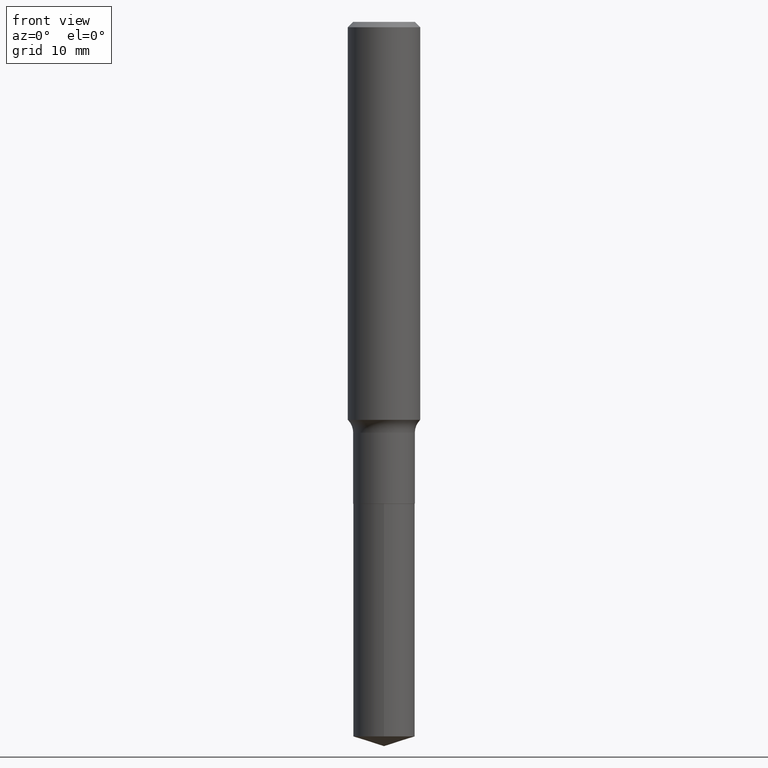
[diagram: clean part render]
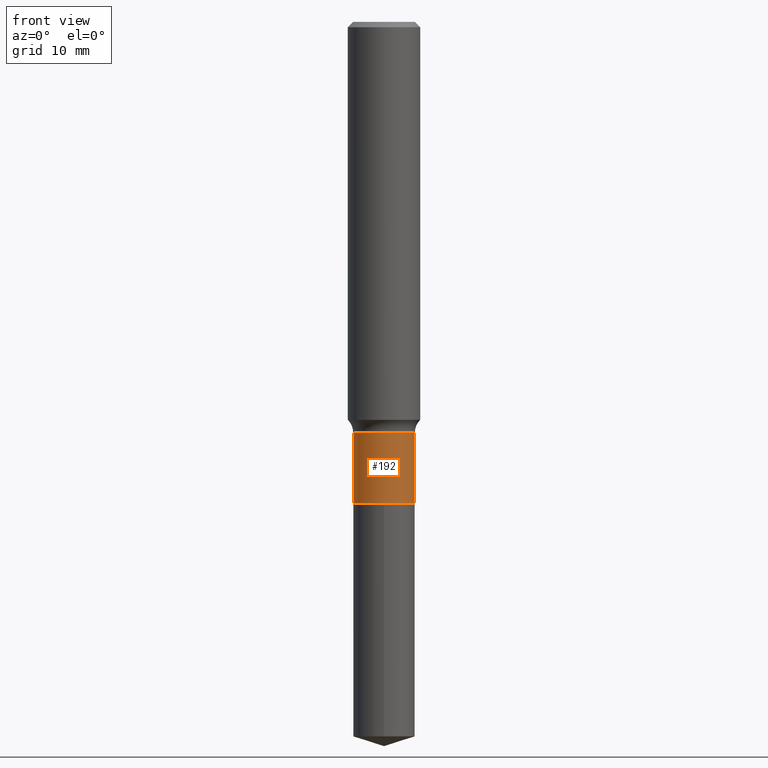
[diagram: same view with one face highlighted and labeled with its STEP entity id]
A machine part, front view. The second image highlights one B-rep face of the part: STEP entity #192.
In plain terms, the highlighted cylindrical surface (edge-blend (fillet) strip) has radius 3.3782 mm, axis along (-0, 0, 1).
Its self-contained STEP definition (entity closure, byte-faithful):
#15 = EDGE_CURVE ( 'NONE', #438, #214, #229, .T. ) ;
#20 = VECTOR ( 'NONE', #261, 39.37007874015748143 ) ;
#31 = CARTESIAN_POINT ( 'NONE',  ( -0.1330000000000000349, -5.777127183113776557E-15, -2.078000000000000291 ) ) ;
#48 = CARTESIAN_POINT ( 'NONE',  ( -0.1329999999999999793, -5.777127183113776557E-15, -1.772600000000000176 ) ) ;
#75 = CARTESIAN_POINT ( 'NONE',  ( 4.334838005843773806E-29, -6.188999821233359788E-15, -1.772600000000000176 ) ) ;
#89 = CARTESIAN_POINT ( 'NONE',  ( 0.000000000000000000, 0.000000000000000000, 0.000000000000000000 ) ) ;
#99 = EDGE_CURVE ( 'NONE', #438, #263, #113, .T. ) ;
#108 = DIRECTION ( 'NONE',  ( -2.445468806185136597E-29, 3.491481338843145583E-15, 1.000000000000000000 ) ) ;
#113 = LINE ( 'NONE', #380, #20 ) ;
#123 = DIRECTION ( 'NONE',  ( 1.000000000000000000, -6.982962677686267499E-15, 4.876176775795936353E-29 ) ) ;
#143 = DIRECTION ( 'NONE',  ( 1.000000000000000000, -6.982962677686269077E-15, 0.000000000000000000 ) ) ;
#155 = DIRECTION ( 'NONE',  ( 1.000000000000000000, -6.982962677686267499E-15, 0.000000000000000000 ) ) ;
#157 = LINE ( 'NONE', #423, #329 ) ;
#159 = CARTESIAN_POINT ( 'NONE',  ( 0.1330000000000000071, -8.184032258248332163E-15, -2.078000000000000291 ) ) ;
#162 = FACE_OUTER_BOUND ( 'NONE', #287, .T. ) ;
#163 = EDGE_CURVE ( 'NONE', #214, #434, #157, .T. ) ;
#164 = AXIS2_PLACEMENT_3D ( 'NONE', #75, #108, #143 ) ;
#170 = ORIENTED_EDGE ( 'NONE', *, *, #163, .T. ) ;
#178 = ORIENTED_EDGE ( 'NONE', *, *, #379, .F. ) ;
#192 = ADVANCED_FACE ( 'NONE', ( #162 ), #228, .T. ) ;
#214 = VERTEX_POINT ( 'NONE', #159 ) ;
#228 = CYLINDRICAL_SURFACE ( 'NONE', #352, 0.1329999999999999793 ) ;
#229 = CIRCLE ( 'NONE', #345, 0.1330000000000000071 ) ;
#261 = DIRECTION ( 'NONE',  ( -2.445468806185136877E-29, 3.491481338843145188E-15, 1.000000000000000000 ) ) ;
#263 = VERTEX_POINT ( 'NONE', #48 ) ;
#287 = EDGE_LOOP ( 'NONE', ( #366, #476, #170, #178 ) ) ;
#308 = CIRCLE ( 'NONE', #164, 0.1329999999999999793 ) ;
#309 = DIRECTION ( 'NONE',  ( -2.445468806185136597E-29, 3.491481338843145583E-15, 1.000000000000000000 ) ) ;
#329 = VECTOR ( 'NONE', #354, 39.37007874015748143 ) ;
#331 = CARTESIAN_POINT ( 'NONE',  ( 0.1329999999999999793, -7.117733857365633607E-15, -1.772600000000000176 ) ) ;
#332 = DIRECTION ( 'NONE',  ( -2.445468806185136597E-29, 3.491481338843145583E-15, 1.000000000000000000 ) ) ;
#345 = AXIS2_PLACEMENT_3D ( 'NONE', #456, #332, #155 ) ;
#352 = AXIS2_PLACEMENT_3D ( 'NONE', #89, #309, #123 ) ;
#354 = DIRECTION ( 'NONE',  ( -2.445468806185136877E-29, 3.491481338843145188E-15, 1.000000000000000000 ) ) ;
#366 = ORIENTED_EDGE ( 'NONE', *, *, #99, .F. ) ;
#379 = EDGE_CURVE ( 'NONE', #263, #434, #308, .T. ) ;
#380 = CARTESIAN_POINT ( 'NONE',  ( -0.1329999999999999793, 9.450218385609331005E-16, -6.542183670039024169E-30 ) ) ;
#423 = CARTESIAN_POINT ( 'NONE',  ( 0.1329999999999999793, -9.287340361322734252E-16, 6.485315111808593988E-30 ) ) ;
#434 = VERTEX_POINT ( 'NONE', #331 ) ;
#438 = VERTEX_POINT ( 'NONE', #31 ) ;
#456 = CARTESIAN_POINT ( 'NONE',  ( 5.081684179252714350E-29, -7.255298222116057555E-15, -2.078000000000000291 ) ) ;
#476 = ORIENTED_EDGE ( 'NONE', *, *, #15, .T. ) ;